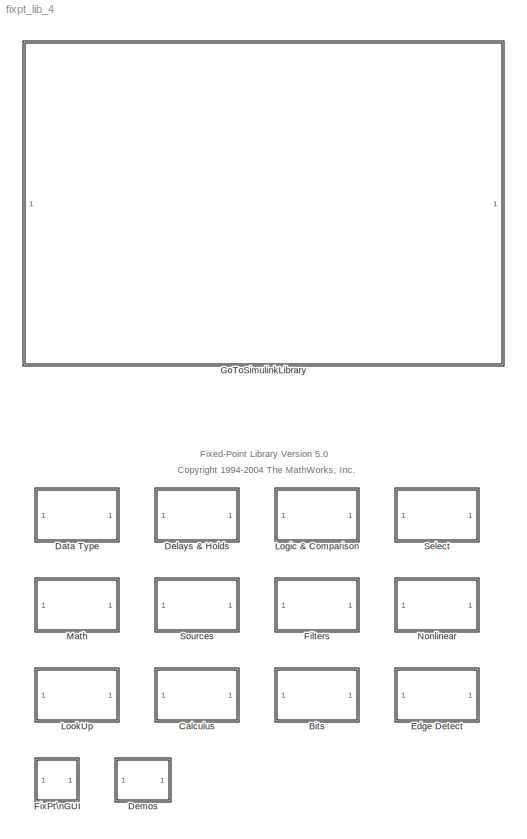
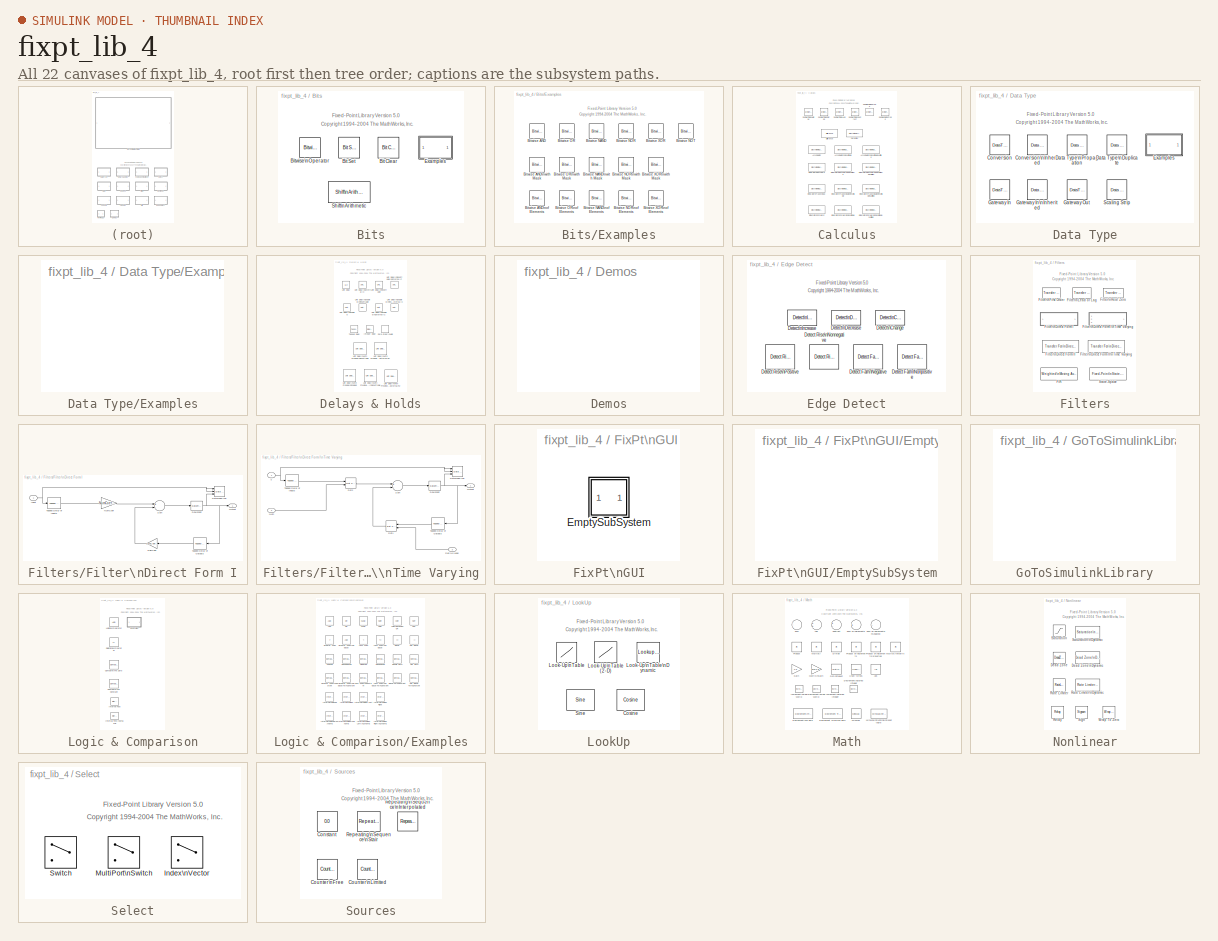
[diagram: thumbnail index - all 22 canvases of the model, root first then tree order]
MODEL fixpt_lib_4
KIND library
BLOCK [SubSystem] Bits
  MaskDisplay = disp('Bits')
  MaskIconFrame = on
  MaskIconOpaque = on
  MaskIconRotate = none
  MaskIconUnits = autoscale
  MinAlgLoopOccurrences = off
  Ports = []
  PropExecContextAcrossSSBoundary = on
  RTWSystemCode = Auto
  TreatAsAtomicUnit = off
BLOCK [Reference] Bits/Bit Clear  REF=simulink/Logic and Bit\nOperations/Bit Clear
  Ports = [1, 1]
  ShowPortLabels = on
  SourceBlock = simulink/Logic and Bit\nOperations/Bit Clear
  SourceType = Bit Clear
  iBit = 0
BLOCK [Reference] Bits/Bit Set  REF=simulink/Logic and Bit\nOperations/Bit Set
  Ports = [1, 1]
  ShowPortLabels = on
  SourceBlock = simulink/Logic and Bit\nOperations/Bit Set
  SourceType = Bit Set
  iBit = 0
BLOCK [Reference] Bits/Bitwise\nOperator  REF=simulink/Logic and Bit\nOperations/Bitwise\nOperator
  BitMask = bin2dec('11011001')
  BitMaskRealWorld = Stored Integer
  NumInputPorts = 1
  Ports = [1, 1]
  SourceBlock = simulink/Logic and Bit\nOperations/Bitwise\nOperator
  SourceType = Bitwise Operator
  UseBitMask = on
  logicop = AND
BLOCK [SubSystem] Bits/Examples
  MaskDisplay = disp('Bitwise\\nExamples')
  MaskIconFrame = on
  MaskIconOpaque = on
  MaskIconRotate = none
  MaskIconUnits = autoscale
  MinAlgLoopOccurrences = off
  Ports = []
  PropExecContextAcrossSSBoundary = on
  RTWSystemCode = Auto
  TreatAsAtomicUnit = off
BLOCK [Reference] Bits/Examples/Bitwise AND  REF=simulink/Logic and Bit\nOperations/Bitwise\nOperator
  BitMask = bin2dec('11011001')
  BitMaskRealWorld = Stored Integer
  NumInputPorts = 2
  Ports = [2, 1]
  SourceBlock = simulink/Logic and Bit\nOperations/Bitwise\nOperator
  SourceType = Bitwise Operator
  UseBitMask = off
  logicop = AND
BLOCK [Reference] Bits/Examples/Bitwise AND\nof Elements  REF=simulink/Logic and Bit\nOperations/Bitwise\nOperator
  BitMask = bin2dec('11011001')
  BitMaskRealWorld = Stored Integer
  NumInputPorts = 1
  Ports = [1, 1]
  SourceBlock = simulink/Logic and Bit\nOperations/Bitwise\nOperator
  SourceType = Bitwise Operator
  UseBitMask = off
  logicop = AND
BLOCK [Reference] Bits/Examples/Bitwise AND\nwith Mask  REF=simulink/Logic and Bit\nOperations/Bitwise\nOperator
  BitMask = bin2dec('11011001')
  BitMaskRealWorld = Stored Integer
  NumInputPorts = 1
  Ports = [1, 1]
  SourceBlock = simulink/Logic and Bit\nOperations/Bitwise\nOperator
  SourceType = Bitwise Operator
  UseBitMask = on
  logicop = AND
BLOCK [Reference] Bits/Examples/Bitwise NAND  REF=simulink/Logic and Bit\nOperations/Bitwise\nOperator
  BitMask = bin2dec('11011001')
  BitMaskRealWorld = Stored Integer
  NumInputPorts = 2
  Ports = [2, 1]
  SourceBlock = simulink/Logic and Bit\nOperations/Bitwise\nOperator
  SourceType = Bitwise Operator
  UseBitMask = off
  logicop = NAND
BLOCK [Reference] Bits/Examples/Bitwise NAND\nof Elements  REF=simulink/Logic and Bit\nOperations/Bitwise\nOperator
  BitMask = bin2dec('11011001')
  BitMaskRealWorld = Stored Integer
  NumInputPorts = 1
  Ports = [1, 1]
  SourceBlock = simulink/Logic and Bit\nOperations/Bitwise\nOperator
  SourceType = Bitwise Operator
  UseBitMask = off
  logicop = NAND
BLOCK [Reference] Bits/Examples/Bitwise NAND\nwith Mask  REF=simulink/Logic and Bit\nOperations/Bitwise\nOperator
  BitMask = bin2dec('11011001')
  BitMaskRealWorld = Stored Integer
  NumInputPorts = 1
  Ports = [1, 1]
  SourceBlock = simulink/Logic and Bit\nOperations/Bitwise\nOperator
  SourceType = Bitwise Operator
  UseBitMask = on
  logicop = NAND
BLOCK [Reference] Bits/Examples/Bitwise NOR  REF=simulink/Logic and Bit\nOperations/Bitwise\nOperator
  BitMask = bin2dec('11011001')
  BitMaskRealWorld = Stored Integer
  NumInputPorts = 2
  Ports = [2, 1]
  SourceBlock = simulink/Logic and Bit\nOperations/Bitwise\nOperator
  SourceType = Bitwise Operator
  UseBitMask = off
  logicop = NOR
BLOCK [Reference] Bits/Examples/Bitwise NOR\nof Elements  REF=simulink/Logic and Bit\nOperations/Bitwise\nOperator
  BitMask = bin2dec('11011001')
  BitMaskRealWorld = Stored Integer
  NumInputPorts = 1
  Ports = [1, 1]
  SourceBlock = simulink/Logic and Bit\nOperations/Bitwise\nOperator
  SourceType = Bitwise Operator
  UseBitMask = off
  logicop = NOR
BLOCK [Reference] Bits/Examples/Bitwise NOR\nwith Mask  REF=simulink/Logic and Bit\nOperations/Bitwise\nOperator
  BitMask = bin2dec('11011001')
  BitMaskRealWorld = Stored Integer
  NumInputPorts = 1
  Ports = [1, 1]
  SourceBlock = simulink/Logic and Bit\nOperations/Bitwise\nOperator
  SourceType = Bitwise Operator
  UseBitMask = on
  logicop = NOR
BLOCK [Reference] Bits/Examples/Bitwise NOT  REF=simulink/Logic and Bit\nOperations/Bitwise\nOperator
  BitMask = bin2dec('11011001')
  BitMaskRealWorld = Stored Integer
  NumInputPorts = 1
  Ports = [1, 1]
  SourceBlock = simulink/Logic and Bit\nOperations/Bitwise\nOperator
  SourceType = Bitwise Operator
  UseBitMask = off
  logicop = NOT
BLOCK [Reference] Bits/Examples/Bitwise OR  REF=simulink/Logic and Bit\nOperations/Bitwise\nOperator
  BitMask = bin2dec('11011001')
  BitMaskRealWorld = Stored Integer
  NumInputPorts = 2
  Ports = [2, 1]
  SourceBlock = simulink/Logic and Bit\nOperations/Bitwise\nOperator
  SourceType = Bitwise Operator
  UseBitMask = off
  logicop = OR
BLOCK [Reference] Bits/Examples/Bitwise OR\nof Elements  REF=simulink/Logic and Bit\nOperations/Bitwise\nOperator
  BitMask = bin2dec('11011001')
  BitMaskRealWorld = Stored Integer
  NumInputPorts = 1
  Ports = [1, 1]
  SourceBlock = simulink/Logic and Bit\nOperations/Bitwise\nOperator
  SourceType = Bitwise Operator
  UseBitMask = off
  logicop = OR
BLOCK [Reference] Bits/Examples/Bitwise OR\nwith Mask  REF=simulink/Logic and Bit\nOperations/Bitwise\nOperator
  BitMask = bin2dec('11011001')
  BitMaskRealWorld = Stored Integer
  NumInputPorts = 1
  Ports = [1, 1]
  SourceBlock = simulink/Logic and Bit\nOperations/Bitwise\nOperator
  SourceType = Bitwise Operator
  UseBitMask = on
  logicop = OR
BLOCK [Reference] Bits/Examples/Bitwise XOR  REF=simulink/Logic and Bit\nOperations/Bitwise\nOperator
  BitMask = bin2dec('11011001')
  BitMaskRealWorld = Stored Integer
  NumInputPorts = 2
  Ports = [2, 1]
  SourceBlock = simulink/Logic and Bit\nOperations/Bitwise\nOperator
  SourceType = Bitwise Operator
  UseBitMask = off
  logicop = XOR
BLOCK [Reference] Bits/Examples/Bitwise XOR\nof Elements  REF=simulink/Logic and Bit\nOperations/Bitwise\nOperator
  BitMask = bin2dec('11011001')
  BitMaskRealWorld = Stored Integer
  NumInputPorts = 1
  Ports = [1, 1]
  SourceBlock = simulink/Logic and Bit\nOperations/Bitwise\nOperator
  SourceType = Bitwise Operator
  UseBitMask = off
  logicop = XOR
BLOCK [Reference] Bits/Examples/Bitwise XOR\nwith Mask  REF=simulink/Logic and Bit\nOperations/Bitwise\nOperator
  BitMask = bin2dec('11011001')
  BitMaskRealWorld = Stored Integer
  NumInputPorts = 1
  Ports = [1, 1]
  SourceBlock = simulink/Logic and Bit\nOperations/Bitwise\nOperator
  SourceType = Bitwise Operator
  UseBitMask = on
  logicop = XOR
BLOCK [Reference] Bits/Shift\nArithmetic  REF=simulink/Logic and Bit\nOperations/Shift\nArithmetic
  Ports = [1, 1]
  ShowPortLabels = on
  SourceBlock = simulink/Logic and Bit\nOperations/Shift\nArithmetic
  SourceType = Shift Arithmetic
  nBinPtShiftRight = 0
  nBitShiftRight = 8
BLOCK [SubSystem] Calculus
  MaskDisplay = disp('Calculus')
  MaskIconFrame = on
  MaskIconOpaque = on
  MaskIconRotate = none
  MaskIconUnits = autoscale
  MinAlgLoopOccurrences = off
  Ports = []
  PropExecContextAcrossSSBoundary = on
  RTWSystemCode = Auto
  TreatAsAtomicUnit = off
BLOCK [DiscreteIntegrator] Calculus/Accumulator
  ExternalReset = none
  ICPrevOutput = DiscIntNeverNeededParam
  ICPrevScaledInput = DiscIntNeverNeededParam
  InitialConditionMode = State only (most efficient)
  InitialConditionSource = internal
  IntegratorMethod = Accumulation: Backward Euler
  Ports = [1, 1]
  SampleTime = -1
BLOCK [DiscreteIntegrator] Calculus/Accumulator\nResettable
  ExternalReset = level
  ICPrevOutput = DiscIntNeverNeededParam
  ICPrevScaledInput = DiscIntNeverNeededParam
  InitialConditionSource = internal
  IntegratorMethod = Accumulation: Backward Euler
  Ports = [2, 1]
  SampleTime = -1
BLOCK [DiscreteIntegrator] Calculus/Accumulator\nResettable\nLimited
  ExternalReset = level
  ICPrevOutput = DiscIntNeverNeededParam
  ICPrevScaledInput = DiscIntNeverNeededParam
  InitialConditionSource = internal
  IntegratorMethod = Accumulation: Backward Euler
  LimitOutput = on
  LowerSaturationLimit = -0.5
  Ports = [2, 1]
  SampleTime = -1
  UpperSaturationLimit = 0.5
BLOCK [Reference] Calculus/Derivative  REF=simulink/Discrete/Discrete Derivative
  DoSatur = off
  ICPrevScaledInput = 0.0
  LockScale = off
  OutDataType = sfix(16)
  OutScaling = 2^-10
  OutputDataTypeScalingMode = Inherit via internal rule
  Ports = [1, 1]
  RndMeth = Floor
  ShowPortLabels = on
  SourceBlock = simulink/Discrete/Discrete Derivative
  SourceType = Discrete Derivative
  gainval = 1.0
BLOCK [Reference] Calculus/Difference  REF=simulink/Discrete/Difference
  DoSatur = off
  ICPrevInput = 0.0
  LockScale = off
  OutDataType = sfix(16)
  OutScaling = 2^-10
  OutputDataTypeScalingMode = Inherit via internal rule
  Ports = [1, 1]
  RndMeth = Floor
  ShowPortLabels = on
  SourceBlock = simulink/Discrete/Difference
  SourceType = Difference
BLOCK [DiscreteIntegrator] Calculus/Integrator\nBackward
  ExternalReset = none
  ICPrevOutput = DiscIntNeverNeededParam
  ICPrevScaledInput = DiscIntNeverNeededParam
  InitialConditionMode = State only (most efficient)
  InitialConditionSource = internal
  IntegratorMethod = Integration: Backward Euler
  Ports = [1, 1]
  SampleTime = -1
BLOCK [DiscreteIntegrator] Calculus/Integrator\nBackward\nResettable
  ExternalReset = level
  ICPrevOutput = DiscIntNeverNeededParam
  ICPrevScaledInput = DiscIntNeverNeededParam
  InitialConditionSource = internal
  IntegratorMethod = Integration: Backward Euler
  Ports = [2, 1]
  SampleTime = -1
BLOCK [DiscreteIntegrator] Calculus/Integrator\nBackward\nResettable\nLimited
  ExternalReset = level
  ICPrevOutput = DiscIntNeverNeededParam
  ICPrevScaledInput = DiscIntNeverNeededParam
  InitialConditionSource = internal
  IntegratorMethod = Integration: Backward Euler
  LimitOutput = on
  LowerSaturationLimit = -0.5
  Ports = [2, 1]
  SampleTime = -1
  UpperSaturationLimit = 0.5
BLOCK [DiscreteIntegrator] Calculus/Integrator\nForward
  ExternalReset = none
  ICPrevOutput = DiscIntNeverNeededParam
  ICPrevScaledInput = DiscIntNeverNeededParam
  InitialConditionMode = State only (most efficient)
  InitialConditionSource = internal
  IntegratorMethod = Integration: Forward Euler
  Ports = [1, 1]
  SampleTime = -1
BLOCK [DiscreteIntegrator] Calculus/Integrator\nForward\nResettable
  ExternalReset = level
  ICPrevOutput = DiscIntNeverNeededParam
  ICPrevScaledInput = DiscIntNeverNeededParam
  InitialConditionMode = State only (most efficient)
  InitialConditionSource = internal
  IntegratorMethod = Integration: Forward Euler
  Ports = [2, 1]
  SampleTime = -1
BLOCK [DiscreteIntegrator] Calculus/Integrator\nForward\nResettable\nLimited
  ExternalReset = level
  ICPrevOutput = DiscIntNeverNeededParam
  ICPrevScaledInput = DiscIntNeverNeededParam
  InitialConditionMode = State only (most efficient)
  InitialConditionSource = internal
  IntegratorMethod = Integration: Forward Euler
  LimitOutput = on
  LowerSaturationLimit = -0.5
  Ports = [2, 1]
  SampleTime = -1
  UpperSaturationLimit = 0.5
BLOCK [DiscreteIntegrator] Calculus/Integrator\nTrapezoidal
  ExternalReset = none
  ICPrevOutput = DiscIntNeverNeededParam
  ICPrevScaledInput = DiscIntNeverNeededParam
  InitialConditionMode = State only (most efficient)
  InitialConditionSource = internal
  IntegratorMethod = Integration: Trapezoidal
  Ports = [1, 1]
  SampleTime = -1
BLOCK [DiscreteIntegrator] Calculus/Integrator\nTrapezoidal\nResettable
  ExternalReset = level
  ICPrevOutput = DiscIntNeverNeededParam
  ICPrevScaledInput = DiscIntNeverNeededParam
  InitialConditionSource = internal
  IntegratorMethod = Integration: Trapezoidal
  Ports = [2, 1]
  SampleTime = -1
BLOCK [DiscreteIntegrator] Calculus/Integrator\nTrapezoidal\nResettable\nLimited
  ExternalReset = level
  ICPrevOutput = DiscIntNeverNeededParam
  ICPrevScaledInput = DiscIntNeverNeededParam
  InitialConditionSource = internal
  IntegratorMethod = Integration: Trapezoidal
  LimitOutput = on
  LowerSaturationLimit = -0.5
  Ports = [2, 1]
  SampleTime = -1
  UpperSaturationLimit = 0.5
BLOCK [Reference] Calculus/Sample Rate\nProbe  REF=simulink/Math\nOperations/Weighted\nSample Time\nMath
  DoSatur = off
  OutputDataTypeScalingMode = Inherit via internal rule
  Ports = [1, 1]
  RndMeth = Floor
  SourceBlock = simulink/Math\nOperations/Weighted\nSample Time\nMath
  SourceType = Sample Time Math
  TsampMathImp = Online Calculations
  TsampMathOp = 1/Ts Only
  weightValue = 1
BLOCK [Reference] Calculus/Sample Time\nAdd  REF=simulink/Math\nOperations/Weighted\nSample Time\nMath
  DoSatur = off
  OutputDataTypeScalingMode = Inherit via internal rule
  Ports = [1, 1]
  RndMeth = Floor
  SourceBlock = simulink/Math\nOperations/Weighted\nSample Time\nMath
  SourceType = Sample Time Math
  TsampMathImp = Online Calculations
  TsampMathOp = +
  weightValue = 1.0
BLOCK [Reference] Calculus/Sample Time\nDivide  REF=simulink/Math\nOperations/Weighted\nSample Time\nMath
  DoSatur = off
  OutputDataTypeScalingMode = Inherit via internal rule
  Ports = [1, 1]
  RndMeth = Floor
  SourceBlock = simulink/Math\nOperations/Weighted\nSample Time\nMath
  SourceType = Sample Time Math
  TsampMathImp = Online Calculations
  TsampMathOp = /
  weightValue = 1.0
BLOCK [Reference] Calculus/Sample Time\nMultiply  REF=simulink/Math\nOperations/Weighted\nSample Time\nMath
  DoSatur = off
  OutputDataTypeScalingMode = Inherit via internal rule
  Ports = [1, 1]
  RndMeth = Floor
  SourceBlock = simulink/Math\nOperations/Weighted\nSample Time\nMath
  SourceType = Sample Time Math
  TsampMathImp = Online Calculations
  TsampMathOp = *
  weightValue = 1.0
BLOCK [Reference] Calculus/Sample Time\nProbe  REF=simulink/Math\nOperations/Weighted\nSample Time\nMath
  DoSatur = off
  OutputDataTypeScalingMode = Inherit via internal rule
  Ports = [1, 1]
  RndMeth = Floor
  SourceBlock = simulink/Math\nOperations/Weighted\nSample Time\nMath
  SourceType = Sample Time Math
  TsampMathImp = Online Calculations
  TsampMathOp = Ts Only
  weightValue = 1.0
BLOCK [Reference] Calculus/Sample Time\nSubtract  REF=simulink/Math\nOperations/Weighted\nSample Time\nMath
  DoSatur = off
  OutputDataTypeScalingMode = Inherit via internal rule
  Ports = [1, 1]
  RndMeth = Floor
  SourceBlock = simulink/Math\nOperations/Weighted\nSample Time\nMath
  SourceType = Sample Time Math
  TsampMathImp = Online Calculations
  TsampMathOp = -
  weightValue = 1.0
BLOCK [SubSystem] Data Type
  MaskDisplay = disp('Data Type\\nConversion &\\nPropagation')
  MaskIconFrame = on
  MaskIconOpaque = on
  MaskIconRotate = none
  MaskIconUnits = autoscale
  MinAlgLoopOccurrences = off
  Ports = []
  PropExecContextAcrossSSBoundary = on
  RTWSystemCode = Auto
  TreatAsAtomicUnit = off
BLOCK [DataTypeConversion] Data Type/Conversion
  OutDataTypeMode = Specify via dialog
  OutScaling = 2^-10
  RndMeth = Floor
  SaturateOnIntegerOverflow = off
BLOCK [Reference] Data Type/Conversion\nInherited  REF=simulink/Signal\nAttributes/Data Type\nConversion\nInherited
  ConvertRealWorld = Real World Value
  DoSatur = off
  Ports = [2, 1]
  RndMeth = Floor
  ShowPortLabels = on
  SourceBlock = simulink/Signal\nAttributes/Data Type\nConversion\nInherited
  SourceType = Conversion Inherited
BLOCK [Reference] Data Type/Data Type\nDuplicate  REF=simulink/Signal\nAttributes/Data Type\nDuplicate
  NumInputPorts = 2
  Ports = [2]
  SourceBlock = simulink/Signal\nAttributes/Data Type\nDuplicate
  SourceType = Data Type Duplicate
BLOCK [Reference] Data Type/Data Type\nPropagation  REF=simulink/Signal\nAttributes/Data Type\nPropagation
  BiasAdd = 0
  BiasBase = Bias1
  BiasMult = 1
  IfRefDouble = double
  IfRefSingle = single
  IsSigned = IsSigned1 or IsSigned2
  NumBitsAdd = 0
  NumBitsAllowFinal = 1:128
  NumBitsBase = max([NumBits1 NumBits2])
  NumBitsMult = 1
  Ports = [3]
  PropDataType = sfix(16)
  PropDataTypeMode = Inherit via propagation rule
  PropScaling = 2^-10
  PropScalingMode = Inherit via propagation rule
  SlopeAdd = 0
  SlopeBase = min([Slope1 Slope2])
  SlopeMult = 1
  SourceBlock = simulink/Signal\nAttributes/Data Type\nPropagation
  SourceType = Data Type Propagation
  ValuesUsedBestPrec = [5 -7]
BLOCK [SubSystem] Data Type/Examples
  MaskDisplay = disp('Data Type\\nPropagation\\nExamples')
  MaskIconFrame = on
  MaskIconOpaque = on
  MaskIconRotate = none
  MaskIconUnits = autoscale
  MinAlgLoopOccurrences = off
  OpenFcn = open_system('fixpt_dtprop')
  Ports = []
  PropExecContextAcrossSSBoundary = on
  RTWSystemCode = Auto
  TreatAsAtomicUnit = off
BLOCK [DataTypeConversion] Data Type/Gateway In
  OutDataTypeMode = Specify via dialog
  OutScaling = 2^-10
  RndMeth = Floor
  SaturateOnIntegerOverflow = off
BLOCK [Reference] Data Type/Gateway In\nInherited  REF=simulink/Signal\nAttributes/Data Type\nConversion\nInherited
  ConvertRealWorld = Real World Value
  DoSatur = off
  Ports = [2, 1]
  RndMeth = Floor
  ShowPortLabels = on
  SourceBlock = simulink/Signal\nAttributes/Data Type\nConversion\nInherited
  SourceType = Conversion Inherited
BLOCK [DataTypeConversion] Data Type/Gateway Out
  OutDataTypeMode = double
  RndMeth = Floor
  SaturateOnIntegerOverflow = off
BLOCK [Reference] Data Type/Scaling Strip  REF=simulink/Signal\nAttributes/Data Type\nScaling Strip
  Ports = [1, 1]
  ShowPortLabels = on
  SourceBlock = simulink/Signal\nAttributes/Data Type\nScaling Strip
  SourceType = Scaling Strip
BLOCK [SubSystem] Delays & Holds
  MaskDisplay = disp('Delays\\n& Holds')
  MaskIconFrame = on
  MaskIconOpaque = on
  MaskIconRotate = none
  MaskIconUnits = autoscale
  MinAlgLoopOccurrences = off
  Ports = []
  PropExecContextAcrossSSBoundary = on
  RTWSystemCode = Auto
  TreatAsAtomicUnit = off
BLOCK [Reference] Delays & Holds/Integer Delay  REF=simulink/Discrete/Integer Delay
  NumDelays = 4
  Ports = [1, 1]
  SourceBlock = simulink/Discrete/Integer Delay
  SourceType = Integer Delay
  samptime = -1
  vinit = 0.0
BLOCK [Reference] Delays & Holds/Tapped Delay  REF=simulink/Discrete/Tapped Delay
  DelayOrder = Oldest
  NumDelays = 4
  Ports = [1, 1]
  SourceBlock = simulink/Discrete/Tapped Delay
  SourceType = Tapped Delay Line
  includeCurrent = off
  samptime = -1
  vinit = 0.0
BLOCK [UnitDelay] Delays & Holds/Unit Delay
  SampleTime = -1
  X0 = 0.0
BLOCK [Reference] Delays & Holds/Unit Delay\nEnabled  REF=simulink/Additional Math\n& Discrete/Additional\nDiscrete/Unit Delay\nEnabled
  Ports = [2, 1]
  ShowPortLabels = on
  SourceBlock = simulink/Additional Math\n& Discrete/Additional\nDiscrete/Unit Delay\nEnabled
  SourceType = Unit Delay Enabled
  tsamp = -1
  vinit = 0.0
BLOCK [Reference] Delays & Holds/Unit Delay\nEnabled\nExternal IC  REF=simulink/Additional Math\n& Discrete/Additional\nDiscrete/Unit Delay\nEnabled\nExternal IC
  Ports = [3, 1]
  ShowPortLabels = on
  SourceBlock = simulink/Additional Math\n& Discrete/Additional\nDiscrete/Unit Delay\nEnabled\nExternal IC
  SourceType = Unit Delay Enabled External Initial Condition
  tsamp = -1
BLOCK [Reference] Delays & Holds/Unit Delay\nEnabled\nResettable  REF=simulink/Additional Math\n& Discrete/Additional\nDiscrete/Unit Delay\nEnabled\nResettable
  Ports = [3, 1]
  ShowPortLabels = on
  SourceBlock = simulink/Additional Math\n& Discrete/Additional\nDiscrete/Unit Delay\nEnabled\nResettable
  SourceType = Unit Delay Enabled Resettable
  tsamp = -1
  vinit = 0.0
BLOCK [Reference] Delays & Holds/Unit Delay\nEnabled\nResettable\nExternal IC  REF=simulink/Additional Math\n& Discrete/Additional\nDiscrete/Unit Delay\nEnabled\nResettable\nExternal IC
  Ports = [4, 1]
  ShowPortLabels = on
  SourceBlock = simulink/Additional Math\n& Discrete/Additional\nDiscrete/Unit Delay\nEnabled\nResettable\nExternal IC
  SourceType = Unit Delay Enabled Resettable External Initial Condition
  tsamp = -1
BLOCK [Reference] Delays & Holds/Unit Delay\nExternal IC  REF=simulink/Additional Math\n& Discrete/Additional\nDiscrete/Unit Delay\nExternal IC
  Ports = [2, 1]
  ShowPortLabels = on
  SourceBlock = simulink/Additional Math\n& Discrete/Additional\nDiscrete/Unit Delay\nExternal IC
  SourceType = Unit Delay External Initial Condition
  tsamp = -1
BLOCK [Reference] Delays & Holds/Unit Delay\nResettable  REF=simulink/Additional Math\n& Discrete/Additional\nDiscrete/Unit Delay\nResettable
  Ports = [2, 1]
  ShowPortLabels = on
  SourceBlock = simulink/Additional Math\n& Discrete/Additional\nDiscrete/Unit Delay\nResettable
  SourceType = Unit Delay Resettable
  tsamp = -1
  vinit = 0.0
BLOCK [Reference] Delays & Holds/Unit Delay\nResettable\nExternal IC  REF=simulink/Additional Math\n& Discrete/Additional\nDiscrete/Unit Delay\nResettable\nExternal IC
  Ports = [3, 1]
  ShowPortLabels = on
  SourceBlock = simulink/Additional Math\n& Discrete/Additional\nDiscrete/Unit Delay\nResettable\nExternal IC
  SourceType = Unit Delay Resettable External Initial Condition
  tsamp = -1
BLOCK [Reference] Delays & Holds/Unit Delay\nWith Preview\nEnabled  REF=simulink/Additional Math\n& Discrete/Additional\nDiscrete/Unit Delay\nWith Preview\nEnabled
  Ports = [2, 2]
  ShowPortLabels = on
  SourceBlock = simulink/Additional Math\n& Discrete/Additional\nDiscrete/Unit Delay\nWith Preview\nEnabled
  SourceType = Unit Delay With Preview Enabled
  tsamp = -1
  vinit = 0.0
BLOCK [Reference] Delays & Holds/Unit Delay\nWith Preview\nEnabled\nResettable  REF=simulink/Additional Math\n& Discrete/Additional\nDiscrete/Unit Delay\nWith Preview\nEnabled\nResettable
  Ports = [3, 2]
  ShowPortLabels = on
  SourceBlock = simulink/Additional Math\n& Discrete/Additional\nDiscrete/Unit Delay\nWith Preview\nEnabled\nResettable
  SourceType = Unit Delay With Preview Enabled Resettable
  tsamp = -1
  vinit = 0.0
BLOCK [Reference] Delays & Holds/Unit Delay\nWith Preview\nEnabled\nResettable\nExternal RV  REF=simulink/Additional Math\n& Discrete/Additional\nDiscrete/Unit Delay\nWith Preview\nEnabled\nResettable\nExternal RV
  Ports = [4, 2]
  ShowPortLabels = on
  SourceBlock = simulink/Additional Math\n& Discrete/Additional\nDiscrete/Unit Delay\nWith Preview\nEnabled\nResettable\nExternal RV
  SourceType = Unit Delay With Preview Enabled Resettable External RV
  tsamp = -1
  vinit = 0.0
BLOCK [Reference] Delays & Holds/Unit Delay\nWith Preview\nResettable  REF=simulink/Additional Math\n& Discrete/Additional\nDiscrete/Unit Delay\nWith Preview\nResettable
  Ports = [2, 2]
  ShowPortLabels = on
  SourceBlock = simulink/Additional Math\n& Discrete/Additional\nDiscrete/Unit Delay\nWith Preview\nResettable
  SourceType = Unit Delay With Preview Resettable
  tsamp = -1
  vinit = 0.0
BLOCK [Reference] Delays & Holds/Unit Delay\nWith Preview\nResettable\nExternal RV  REF=simulink/Additional Math\n& Discrete/Additional\nDiscrete/Unit Delay\nWith Preview\nResettable\nExternal RV
  Ports = [3, 2]
  ShowPortLabels = on
  SourceBlock = simulink/Additional Math\n& Discrete/Additional\nDiscrete/Unit Delay\nWith Preview\nResettable\nExternal RV
  SourceType = Unit Delay With Preview Resettable External RV
  tsamp = -1
  vinit = 0.0
BLOCK [ZeroOrderHold] Delays & Holds/Zero-Order\nHold
BLOCK [SubSystem] Demos
  MaskDisplay = disp('Demos')
  MaskHelp = web(fpbhelp)
  MaskIconFrame = on
  MaskIconOpaque = on
  MaskIconRotate = none
  MaskIconUnits = autoscale
  MinAlgLoopOccurrences = off
  OpenFcn = demo('blocksets','Fixed Point')
  Ports = []
  PropExecContextAcrossSSBoundary = on
  RTWSystemCode = Auto
  TreatAsAtomicUnit = off
BLOCK [SubSystem] Edge Detect
  MaskDisplay = disp('Edge\\nDetect')
  MaskIconFrame = on
  MaskIconOpaque = on
  MaskIconRotate = none
  MaskIconUnits = autoscale
  MinAlgLoopOccurrences = off
  Ports = []
  PropExecContextAcrossSSBoundary = on
  RTWSystemCode = Auto
  TreatAsAtomicUnit = off
BLOCK [Reference] Edge Detect/Detect Fall\nNegative  REF=simulink/Logic and Bit\nOperations/Detect Fall\nNegative
  Ports = [1, 1]
  ShowPortLabels = on
  SourceBlock = simulink/Logic and Bit\nOperations/Detect Fall\nNegative
  SourceType = Detect Fall Negative
  vinit = 0
BLOCK [Reference] Edge Detect/Detect Fall\nNonpositive  REF=simulink/Logic and Bit\nOperations/Detect Fall\nNonpositive
  Ports = [1, 1]
  ShowPortLabels = on
  SourceBlock = simulink/Logic and Bit\nOperations/Detect Fall\nNonpositive
  SourceType = Detect Fall Nonpositive
  vinit = 0
BLOCK [Reference] Edge Detect/Detect Rise\nNonnegative  REF=simulink/Logic and Bit\nOperations/Detect Rise\nNonnegative
  Ports = [1, 1]
  ShowPortLabels = on
  SourceBlock = simulink/Logic and Bit\nOperations/Detect Rise\nNonnegative
  SourceType = Detect Rise Nonnegative
  vinit = 0
BLOCK [Reference] Edge Detect/Detect Rise\nPositive  REF=simulink/Logic and Bit\nOperations/Detect Rise\nPositive
  Ports = [1, 1]
  ShowPortLabels = on
  SourceBlock = simulink/Logic and Bit\nOperations/Detect Rise\nPositive
  SourceType = Detect Rise Positive
  vinit = 0
BLOCK [Reference] Edge Detect/Detect\nChange  REF=simulink/Logic and Bit\nOperations/Detect\nChange
  Ports = [1, 1]
  ShowPortLabels = on
  SourceBlock = simulink/Logic and Bit\nOperations/Detect\nChange
  SourceType = Detect Change
  vinit = 0
BLOCK [Reference] Edge Detect/Detect\nDecrease  REF=simulink/Logic and Bit\nOperations/Detect\nDecrease
  Ports = [1, 1]
  ShowPortLabels = on
  SourceBlock = simulink/Logic and Bit\nOperations/Detect\nDecrease
  SourceType = Detect Decrease
  vinit = 0.0
BLOCK [Reference] Edge Detect/Detect\nIncrease  REF=simulink/Logic and Bit\nOperations/Detect\nIncrease
  Ports = [1, 1]
  ShowPortLabels = on
  SourceBlock = simulink/Logic and Bit\nOperations/Detect\nIncrease
  SourceType = Detect Increase
  vinit = 0.0
BLOCK [SubSystem] Filters
  MaskDisplay = disp('Filters')
  MaskIconFrame = on
  MaskIconOpaque = on
  MaskIconRotate = none
  MaskIconUnits = autoscale
  MinAlgLoopOccurrences = off
  Ports = []
  PropExecContextAcrossSSBoundary = on
  RTWSystemCode = Auto
  TreatAsAtomicUnit = off
BLOCK [Reference] Filters/FIR  REF=simulink/Discrete/Weighted\nMoving Average
  DoSatur = off
  GainDataType = sfix( 16 )
  GainDataTypeScalingMode = Inherit via internal rule
  GainScaling = 2^-10
  LockScale = off
  MatRadixGroup = Best Precision: Matrix-wise
  OutDataType = sfix(16)
  OutScaling = 2^-10
  OutputDataTypeScalingMode = Inherit via internal rule
  Ports = [1, 1]
  RndMeth = Floor
  SourceBlock = simulink/Discrete/Weighted\nMoving Average
  SourceType = Weighted Moving Average
  mgainval = [0.1:0.1:1 0.9:-0.1:0.1]
  samptime = -1
  vinit = 0.0
BLOCK [SubSystem] Filters/Filter\nDirect Form I
  MaskCallbackString = fixptdialog(gcbh)|fixptdialog(gcbh)||||
  MaskDescription = A Direct Form I realization of the specified transfer is used.  Only single input single output transfer functions are supported.  \n\nThe data types and scalings of the output, the coefficients, and any temporary variables are automatically selected.  The automatic choices will be acceptable in many situations.  In situations where the automatic choices give unacceptable results, manual layout of...<+504ch>
  MaskDisplay = dpoly(NumCoefVec,[1 DenCoefVec],'z-')
  MaskEnableString = on,on,on,on,on,on
  MaskIconFrame = on
  MaskIconOpaque = on
  MaskIconRotate = none
  MaskIconUnits = normalized
  MaskInitialization = blkH = gcbh;\nblkName = getfullname(blkH);\n\nvRndMeth = get_param(blkH,'RndMeth');\nvDoSatur = get_param(blkH,'DoSatur');\nDCGain = polyval(NumCoefVec,1)./polyval([1 DenCoefVec],1);\nmaxGain = max( 1, max(max(abs(DCGain))) );\nmaxGain = max( maxGain, abs(NumCoefVec(1)) );\nOutputSlopeMult = 2^ceil(log2(maxGain));\n\nset_param([blkName,'/NumCoef'],'RndMeth',vRndMeth, ...\n	'DoSatur',vDoSatur);\nse...<+234ch>
  MaskPromptString = Numerator coefficients:|Denominator coefficients excluding lead (which must be 1.0):|Initial condition for previous output:|Initial condition for previous input:|Round toward:|Saturate to max or min when overflows occur
  MaskSelfModifiable = on
  MaskStyleString = edit,edit,edit,edit,popup(Zero|Nearest|Ceiling|Floor),checkbox
  MaskTabNameString = ,,,,,
  MaskToolTipString = on,on,on,on,on,on
  MaskTunableValueString = on,on,on,on,on,on
  MaskType = Transfer Fcn Direct Form I
  MaskValueString = [0.2 0.3 0.2]|[-0.9    0.6]|0.0|0.0|Floor|off
  MaskVarAliasString = ,,,,,
  MaskVariables = NumCoefVec=@1;DenCoefVec=@2;ICPrevOutput=@3;ICPrevInput=@4;RndMeth=@5;DoSatur=@6;
  MaskVisibilityString = on,on,on,on,on,on
  MinAlgLoopOccurrences = off
  Ports = [1, 1]
  PropExecContextAcrossSSBoundary = on
  RTWSystemCode = Auto
  TreatAsAtomicUnit = off
BLOCK [Reference] Filters/Filter\nDirect Form I/DataTypeProp  REF=simulink/Signal\nAttributes/Data Type\nPropagation
  BiasAdd = 0
  BiasBase = Bias1
  BiasMult = 0
  IfRefDouble = double
  IfRefSingle = single
  IsSigned = IsSigned1 or IsSigned2
  NumBitsAdd = 0
  NumBitsAllowFinal = 1:128
  NumBitsBase = max([NumBits1 NumBits2])
  NumBitsMult = 1
  Ports = [3]
  PropDataType = sfix(16)
  PropDataTypeMode = Inherit via propagation rule
  PropScaling = 2^-10
  PropScalingMode = Inherit via propagation rule
  SlopeAdd = 0
  SlopeBase = min([Slope1 Slope2])
  SlopeMult = OutputSlopeMult
  SourceBlock = simulink/Signal\nAttributes/Data Type\nPropagation
  SourceType = Data Type Propagation
  ValuesUsedBestPrec = [5 -7]
BLOCK [Gain] Filters/Filter\nDirect Form I/DenCoef
  AttributesFormatString = \nData Type and Scaling Inherited\nwith goal of NO Quantization Noise\nPossible Overflow or Saturation
  Gain = DenCoefVec
  Multiplication = Matrix(K*u) (u vector)
  OutDataTypeMode = Inherit via internal rule
  OutScaling = 2^-10
  ParameterDataType = float('double')
  ParameterDataTypeMode = Inherit via internal rule
  ParameterScaling = 1
  ParameterScalingMode = Use specified scaling
  SaturateOnIntegerOverflow = off
BLOCK [DataTypeConversion] Filters/Filter\nDirect Form I/Downcast
  AttributesFormatString = %<Description>
  Description = \nReduce from CPU Size\n to Global RAM Size
  LockScale = on
  OutDataType = float('double')
  OutScaling = 1
  RndMeth = Floor
  SaturateOnIntegerOverflow = off
BLOCK [Inport] Filters/Filter\nDirect Form I/Input
  IconDisplay = Port number
  LatchInput = off
BLOCK [Gain] Filters/Filter\nDirect Form I/NumCoef
  AttributesFormatString = \nData Type and Scaling Inherited\nwith goal of NO Quantization Noise\nPossible Overflow or Saturation
  Gain = NumCoefVec
  Multiplication = Matrix(K*u) (u vector)
  OutDataTypeMode = Inherit via internal rule
  OutScaling = 2^-10
  ParameterDataType = float('double')
  ParameterDataTypeMode = Inherit via internal rule
  ParameterScaling = 1
  ParameterScalingMode = Use specified scaling
  SaturateOnIntegerOverflow = off
BLOCK [Outport] Filters/Filter\nDirect Form I/Output
  BusOutputAsStruct = off
  IconDisplay = Port number
BLOCK [Sum] Filters/Filter\nDirect Form I/Sum
  AttributesFormatString = \nData Type and Scaling Inherited\nwith goal of NO Quantization Noise\nPossible Overflow or Saturation
  InputSameDT = off
  Inputs = +-
  LockScale = on
  OutDataType = sfix(32)
  OutDataTypeMode = Inherit via internal rule
  OutScaling = 2^(-26)
  Ports = [2, 1]
  SaturateOnIntegerOverflow = off
  Tag = S16 2^-10
BLOCK [Reference] Filters/Filter\nDirect Form I/Tapped Delay of Inputs  REF=simulink/Discrete/Tapped Delay
  AttributesFormatString = \nNumber of Taps\nInherited via Back Propagation
  DelayOrder = Newest
  NumDelays = -1
  Ports = [1, 1]
  SourceBlock = simulink/Discrete/Tapped Delay
  SourceType = Tapped Delay Line
  includeCurrent = on
  samptime = -1
  vinit = ICPrevInput
BLOCK [Reference] Filters/Filter\nDirect Form I/Tapped Delay of Outputs  REF=simulink/Discrete/Tapped Delay
  AttributesFormatString = \nNumber of Taps\nInherited via Back Propagation
  DelayOrder = Newest
  NumDelays = -1
  Ports = [1, 1]
  SourceBlock = simulink/Discrete/Tapped Delay
  SourceType = Tapped Delay Line
  includeCurrent = off
  samptime = -1
  vinit = ICPrevOutput
BLOCK [Reference] Filters/Filter\nDirect Form II  REF=simulink/Additional Math\n& Discrete/Additional\nDiscrete/Transfer Fcn\nDirect Form II
  DenCoefVec = [-0.9    0.6]
  DoSatur = off
  NumCoefVec = [0.2 0.3 0.2]
  Ports = [1, 1]
  RndMeth = Floor
  ShowPortLabels = on
  SourceBlock = simulink/Additional Math\n& Discrete/Additional\nDiscrete/Transfer Fcn\nDirect Form II
  SourceType = Transfer Fcn Direct Form II
  vinit = 0.0
BLOCK [Reference] Filters/Filter\nDirect Form II\nTime Varying  REF=simulink/Additional Math\n& Discrete/Additional\nDiscrete/Transfer Fcn\nDirect Form II\nTime Varying
  DoSatur = off
  Ports = [3, 1]
  RndMeth = Floor
  ShowPortLabels = on
  SourceBlock = simulink/Additional Math\n& Discrete/Additional\nDiscrete/Transfer Fcn\nDirect Form II\nTime Varying
  SourceType = Transfer Fcn Direct Form II Time Varying
  vinit = 0.0
BLOCK [SubSystem] Filters/Filter\nDirect Form I\nTime Varying
  MaskCallbackString = |||
  MaskDescription = A Direct Form I realization of the specified transfer function is used.  Only single input single output transfer functions are supported.  \n\nThe data types and scalings of the output, the coefficients, and any temporary variables are automatically selected.  The automatic choices will be acceptable in many situations.  In situations where the automatic choices give unacceptable results, manual ...<+513ch>
  MaskDisplay = fprintf('Direct\\nForm I')
  MaskEnableString = on,on,on,on
  MaskIconFrame = on
  MaskIconOpaque = off
  MaskIconRotate = none
  MaskIconUnits = normalized
  MaskInitialization = blkH = gcbh;\nblkName = getfullname(blkH);\n\nvRndMeth = get_param(blkH,'RndMeth');\nvDoSatur = get_param(blkH,'DoSatur');\nset_param([blkName,'/Dot1'],'RndMeth',vRndMeth, ...\n	'DoSatur',vDoSatur);\nset_param([blkName,'/Dot2'],'RndMeth',vRndMeth, ...\n	'DoSatur',vDoSatur);\nset_param([blkName,'/Downcast'],'RndMeth',vRndMeth, ...\n	'DoSatur',vDoSatur);\nset_param([blkName,'/Sum'],'RndMeth',vRndMet...<+31ch>
  MaskPromptString = Initial condition for previous output:|Initial condition for previous input:|Round toward:|Saturate to max or min when overflows occur
  MaskSelfModifiable = on
  MaskStyleString = edit,edit,popup(Zero|Nearest|Ceiling|Floor),checkbox
  MaskTabNameString = ,,,
  MaskToolTipString = on,on,on,on
  MaskTunableValueString = on,on,on,on
  MaskType = Transfer Fcn Direct Form I Time Varying
  MaskValueString = 0.0|0.0|Floor|off
  MaskVarAliasString = ,,,
  MaskVariables = ICPrevOutput=@1;ICPrevInput=@2;RndMeth=@3;DoSatur=@4;
  MaskVisibilityString = on,on,on,on
  MinAlgLoopOccurrences = off
  Ports = [3, 1]
  PropExecContextAcrossSSBoundary = on
  RTWSystemCode = Auto
  TreatAsAtomicUnit = off
BLOCK [Reference] Filters/Filter\nDirect Form I\nTime Varying/DataTypeProp  REF=simulink/Signal\nAttributes/Data Type\nPropagation
  BiasAdd = 0
  BiasBase = Bias1
  BiasMult = 1
  IfRefDouble = double
  IfRefSingle = single
  IsSigned = IsSigned1
  NumBitsAdd = 0
  NumBitsAllowFinal = 1:128
  NumBitsBase = NumBits1
  NumBitsMult = 1
  Ports = [3]
  PropDataType = sfix(16)
  PropDataTypeMode = Inherit via propagation rule
  PropScaling = 2^-10
  PropScalingMode = Inherit via propagation rule
  SlopeAdd = 0
  SlopeBase = Slope1
  SlopeMult = 1
  SourceBlock = simulink/Signal\nAttributes/Data Type\nPropagation
  SourceType = Data Type Propagation
  ValuesUsedBestPrec = [5 -7]
BLOCK [Inport] Filters/Filter\nDirect Form I\nTime Varying/Den No Lead
  IconDisplay = Port number
  LatchInput = off
  Port = 3
BLOCK [Reference] Filters/Filter\nDirect Form I\nTime Varying/Dot1  REF=simulink/Math\nOperations/Dot Product
  AttributesFormatString = \nData Type and Scaling Inherited\nwith goal of NO Quantization Noise\nPossible Overflow or Saturation
  DoSatur = off
  InputSameDT = off
  LockScale = off
  OutDataType = sfix(16)
  OutScaling = 2^-10
  OutputDataTypeScalingMode = Inherit via internal rule
  Ports = [2, 1]
  RndMeth = Floor
  SourceBlock = simulink/Math\nOperations/Dot Product
  SourceType = Dot Product
BLOCK [Reference] Filters/Filter\nDirect Form I\nTime Varying/Dot2  REF=simulink/Math\nOperations/Dot Product
  AttributesFormatString = \nData Type and Scaling Inherited\nwith goal of NO Quantization Noise\nPossible Overflow or Saturation
  DoSatur = off
  InputSameDT = off
  LockScale = off
  OutDataType = sfix(16)
  OutScaling = 2^-10
  OutputDataTypeScalingMode = Inherit via internal rule
  Ports = [2, 1]
  RndMeth = Floor
  SourceBlock = simulink/Math\nOperations/Dot Product
  SourceType = Dot Product
BLOCK [DataTypeConversion] Filters/Filter\nDirect Form I\nTime Varying/Downcast
  AttributesFormatString = %<Description>
  Description = \nReduce from CPU Size\n to Global RAM Size
  LockScale = on
  OutDataType = float('double')
  OutScaling = 1
  RndMeth = Floor
  SaturateOnIntegerOverflow = off
BLOCK [Inport] Filters/Filter\nDirect Form I\nTime Varying/Num
  IconDisplay = Port number
  LatchInput = off
  Port = 2
BLOCK [Outport] Filters/Filter\nDirect Form I\nTime Varying/Output
  BusOutputAsStruct = off
  IconDisplay = Port number
BLOCK [Sum] Filters/Filter\nDirect Form I\nTime Varying/Sum
  AttributesFormatString = \nData Type and Scaling Inherited\nwith goal of NO Quantization Noise\nPossible Overflow or Saturation
  InputSameDT = off
  Inputs = +-
  LockScale = on
  OutDataType = sfix(32)
  OutDataTypeMode = Inherit via internal rule
  OutScaling = 2^(-26)
  Ports = [2, 1]
  SaturateOnIntegerOverflow = off
  Tag = S16 2^-10
BLOCK [Reference] Filters/Filter\nDirect Form I\nTime Varying/Tapped Delay of Inputs  REF=simulink/Discrete/Tapped Delay
  AttributesFormatString = \nNumber of Taps\nInherited via Back Propagation
  DelayOrder = Newest
  NumDelays = -1
  Ports = [1, 1]
  SourceBlock = simulink/Discrete/Tapped Delay
  SourceType = Tapped Delay Line
  includeCurrent = on
  samptime = -1
  vinit = ICPrevInput
BLOCK [Reference] Filters/Filter\nDirect Form I\nTime Varying/Tapped Delay of Outputs  REF=simulink/Discrete/Tapped Delay
  AttributesFormatString = \nNumber of Taps\nInherited via Back Propagation
  DelayOrder = Newest
  NumDelays = -1
  Ports = [1, 1]
  SourceBlock = simulink/Discrete/Tapped Delay
  SourceType = Tapped Delay Line
  includeCurrent = off
  samptime = -1
  vinit = ICPrevOutput
BLOCK [Inport] Filters/Filter\nDirect Form I\nTime Varying/u
  IconDisplay = Port number
  LatchInput = off
BLOCK [Reference] Filters/Filter\nFirst Order  REF=simulink/Discrete/Transfer Fcn\nFirst Order
  DoSatur = off
  ICPrevOutput = 0.0
  PoleZ = 0.95
  Ports = [1, 1]
  RndMeth = Floor
  ShowPortLabels = on
  SourceBlock = simulink/Discrete/Transfer Fcn\nFirst Order
  SourceType = First Order Transfer Fcn
BLOCK [Reference] Filters/Filter\nLead or Lag  REF=simulink/Discrete/Transfer Fcn\nLead or Lag
  DoSatur = off
  ICPrevInput = 0.0
  ICPrevOutput = 0.0
  PoleZ = 0.95
  Ports = [1, 1]
  RndMeth = Floor
  ShowPortLabels = on
  SourceBlock = simulink/Discrete/Transfer Fcn\nLead or Lag
  SourceType = Lead or Lag Compensator
  ZeroZ = 0.75
BLOCK [Reference] Filters/Filter\nReal Zero  REF=simulink/Discrete/Transfer Fcn\nReal Zero
  DoSatur = off
  ICPrevInput = 0.0
  Ports = [1, 1]
  RndMeth = Floor
  ShowPortLabels = on
  SourceBlock = simulink/Discrete/Transfer Fcn\nReal Zero
  SourceType = Transfer Fcn Real Zero
  ZeroZ = 0.75
BLOCK [Reference] Filters/State-Space  REF=simulink/Additional Math\n& Discrete/Additional\nDiscrete/Fixed-Point\nState-Space
  A = [2.6020 -2.2793 0.6708; 1 0 0; 0 1 0]
  B = [ 1; 0; 0]
  C = [0.0184    0.0024    0.0055]
  D = [0.0033]
  DoSatur = off
  InternalDataType = float('double')
  LockScale = off
  OutputEqScaling = 2^0
  Ports = [1, 1]
  RndMeth = Floor
  ShowPortLabels = on
  SourceBlock = simulink/Additional Math\n& Discrete/Additional\nDiscrete/Fixed-Point\nState-Space
  SourceType = Fixed-Point State-Space
  StateEqScaling = 2^0
  X0 = 0.0
BLOCK [SubSystem] FixPt\nGUI
  MaskDescription = Fixed point GUI block.
  MaskDisplay = disp('FixPt\\nGUI')
  MaskHelp = web(fpbhelp('fixptgui'));
  MaskIconFrame = on
  MaskIconOpaque = on
  MaskIconRotate = none
  MaskIconUnits = autoscale
  MaskType = Fixed-Point GUI
  MinAlgLoopOccurrences = off
  OpenFcn = fxptdlg(bdroot)
  Ports = []
  PropExecContextAcrossSSBoundary = on
  RTWSystemCode = Auto
  TreatAsAtomicUnit = off
BLOCK [SubSystem] FixPt\nGUI/EmptySubSystem
  MinAlgLoopOccurrences = off
  Ports = []
  PropExecContextAcrossSSBoundary = on
  RTWSystemCode = Auto
  TreatAsAtomicUnit = off
BLOCK [SubSystem] GoToSimulinkLibrary
  MaskDisplay = disp(dispstr)
  MaskIconFrame = on
  MaskIconOpaque = on
  MaskIconRotate = none
  MaskIconUnits = normalized
  MaskInitialization = dispstr = [...\n'This is an obsolete library. All blocks previously from\\n',...\n'Fixed-Point Blockset are automatically mapped to\\n',...\n'unified blocks in the main Simulink library.\\n\\n', ...\n'DOUBLE CLICK HERE to open the main Simulink library.\\n\\n',...\n'Unified blocks support both floating-point and fixed-point\\ndata types.  ',...\n'When used with floating-point or built-in\\n',...\n...<+351ch>
  MaskType = GoToSimulinkLibrary
  MinAlgLoopOccurrences = off
  OpenFcn = fixpt;
  Ports = []
  PropExecContextAcrossSSBoundary = on
  RTWSystemCode = Auto
  TreatAsAtomicUnit = off
BLOCK [SubSystem] Logic & Comparison
  MaskDisplay = disp('Logic &\\nComparison')
  MaskIconFrame = on
  MaskIconOpaque = on
  MaskIconRotate = none
  MaskIconUnits = autoscale
  MinAlgLoopOccurrences = off
  Ports = []
  PropExecContextAcrossSSBoundary = on
  RTWSystemCode = Auto
  TreatAsAtomicUnit = off
BLOCK [Reference] Logic & Comparison/Compare\nTo Constant  REF=simulink/Logic and Bit\nOperations/Compare\nTo Constant
  LogicOutDataTypeMode = uint8
  Ports = [1, 1]
  ShowPortLabels = on
  SourceBlock = simulink/Logic and Bit\nOperations/Compare\nTo Constant
  SourceType = Compare To Constant
  const = 3.0
  relop = <=
BLOCK [Reference] Logic & Comparison/Compare\nTo Zero  REF=simulink/Logic and Bit\nOperations/Compare\nTo Zero
  LogicOutDataTypeMode = uint8
  Ports = [1, 1]
  ShowPortLabels = on
  SourceBlock = simulink/Logic and Bit\nOperations/Compare\nTo Zero
  SourceType = Compare To Zero
  relop = <=
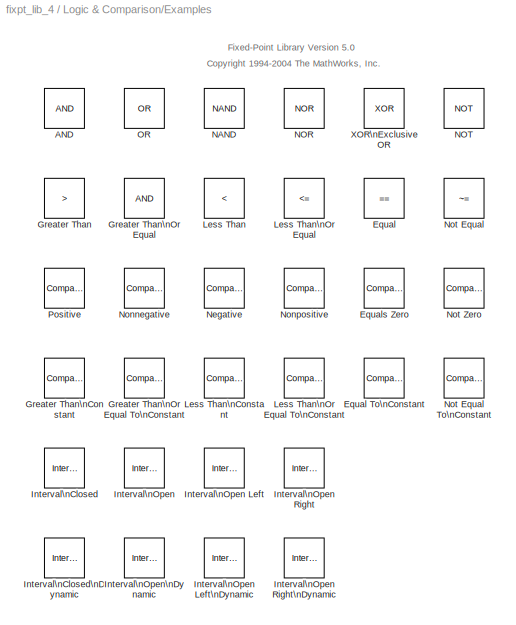
BLOCK [SubSystem] Logic & Comparison/Examples
  MaskDisplay = disp('Logic &\\nComparison\\nExamples')
  MaskIconFrame = on
  MaskIconOpaque = on
  MaskIconRotate = none
  MaskIconUnits = autoscale
  MinAlgLoopOccurrences = off
  Ports = []
  PropExecContextAcrossSSBoundary = on
  RTWSystemCode = Auto
  TreatAsAtomicUnit = off
BLOCK [Logic] Logic & Comparison/Examples/AND
  AllPortsSameDT = off
  OutDataTypeMode = Specify via dialog
  Ports = [2, 1]
BLOCK [RelationalOperator] Logic & Comparison/Examples/Equal
  InputSameDT = off
  LogicOutDataTypeMode = Specify via dialog
  Operator = ==
  ZeroCross = off
BLOCK [Reference] Logic & Comparison/Examples/Equal To\nConstant  REF=simulink/Logic and Bit\nOperations/Compare\nTo Constant
  LogicOutDataTypeMode = uint8
  Ports = [1, 1]
  ShowPortLabels = on
  SourceBlock = simulink/Logic and Bit\nOperations/Compare\nTo Constant
  SourceType = Compare To Constant
  const = 3.0
  relop = <=
BLOCK [Reference] Logic & Comparison/Examples/Equals Zero  REF=simulink/Logic and Bit\nOperations/Compare\nTo Zero
  LogicOutDataTypeMode = uint8
  Ports = [1, 1]
  ShowPortLabels = on
  SourceBlock = simulink/Logic and Bit\nOperations/Compare\nTo Zero
  SourceType = Compare To Zero
  relop = ==
BLOCK [RelationalOperator] Logic & Comparison/Examples/Greater Than
  InputSameDT = off
  LogicOutDataTypeMode = Specify via dialog
  Operator = >
  ZeroCross = off
BLOCK [Reference] Logic & Comparison/Examples/Greater Than\nConstant  REF=simulink/Logic and Bit\nOperations/Compare\nTo Constant
  LogicOutDataTypeMode = uint8
  Ports = [1, 1]
  ShowPortLabels = on
  SourceBlock = simulink/Logic and Bit\nOperations/Compare\nTo Constant
  SourceType = Compare To Constant
  const = 3.0
  relop = >
BLOCK [RelationalOperator] Logic & Comparison/Examples/Greater Than\nOr Equal
  InputSameDT = off
  LogicOutDataTypeMode = Specify via dialog
  ZeroCross = off
BLOCK [Reference] Logic & Comparison/Examples/Greater Than\nOr Equal To\nConstant  REF=simulink/Logic and Bit\nOperations/Compare\nTo Constant
  LogicOutDataTypeMode = uint8
  Ports = [1, 1]
  ShowPortLabels = on
  SourceBlock = simulink/Logic and Bit\nOperations/Compare\nTo Constant
  SourceType = Compare To Constant
  const = 3.0
  relop = >=
BLOCK [Reference] Logic & Comparison/Examples/Interval\nClosed  REF=simulink/Logic and Bit\nOperations/Interval Test
  IntervalClosedLeft = on
  IntervalClosedRight = on
  LogicOutDataTypeMode = boolean
  Ports = [1, 1]
  ShowPortLabels = on
  SourceBlock = simulink/Logic and Bit\nOperations/Interval Test
  SourceType = Interval Test
  lowlimit = -0.5
  uplimit = 0.5
BLOCK [Reference] Logic & Comparison/Examples/Interval\nClosed\nDynamic  REF=simulink/Logic and Bit\nOperations/Interval Test\nDynamic
  IntervalClosedLeft = on
  IntervalClosedRight = on
  LogicOutDataTypeMode = boolean
  Ports = [3, 1]
  ShowPortLabels = on
  SourceBlock = simulink/Logic and Bit\nOperations/Interval Test\nDynamic
  SourceType = Interval Test Dynamic
BLOCK [Reference] Logic & Comparison/Examples/Interval\nOpen  REF=simulink/Logic and Bit\nOperations/Interval Test
  IntervalClosedLeft = off
  IntervalClosedRight = off
  LogicOutDataTypeMode = boolean
  Ports = [1, 1]
  ShowPortLabels = on
  SourceBlock = simulink/Logic and Bit\nOperations/Interval Test
  SourceType = Interval Test
  lowlimit = -0.5
  uplimit = 0.5
BLOCK [Reference] Logic & Comparison/Examples/Interval\nOpen Left  REF=simulink/Logic and Bit\nOperations/Interval Test
  IntervalClosedLeft = off
  IntervalClosedRight = on
  LogicOutDataTypeMode = boolean
  Ports = [1, 1]
  ShowPortLabels = on
  SourceBlock = simulink/Logic and Bit\nOperations/Interval Test
  SourceType = Interval Test
  lowlimit = -0.5
  uplimit = 0.5
BLOCK [Reference] Logic & Comparison/Examples/Interval\nOpen Left\nDynamic  REF=simulink/Logic and Bit\nOperations/Interval Test\nDynamic
  IntervalClosedLeft = off
  IntervalClosedRight = on
  LogicOutDataTypeMode = boolean
  Ports = [3, 1]
  ShowPortLabels = on
  SourceBlock = simulink/Logic and Bit\nOperations/Interval Test\nDynamic
  SourceType = Interval Test Dynamic
BLOCK [Reference] Logic & Comparison/Examples/Interval\nOpen Right  REF=simulink/Logic and Bit\nOperations/Interval Test
  IntervalClosedLeft = on
  IntervalClosedRight = off
  LogicOutDataTypeMode = boolean
  Ports = [1, 1]
  ShowPortLabels = on
  SourceBlock = simulink/Logic and Bit\nOperations/Interval Test
  SourceType = Interval Test
  lowlimit = -0.5
  uplimit = 0.5
BLOCK [Reference] Logic & Comparison/Examples/Interval\nOpen Right\nDynamic  REF=simulink/Logic and Bit\nOperations/Interval Test\nDynamic
  IntervalClosedLeft = on
  IntervalClosedRight = off
  LogicOutDataTypeMode = boolean
  Ports = [3, 1]
  ShowPortLabels = on
  SourceBlock = simulink/Logic and Bit\nOperations/Interval Test\nDynamic
  SourceType = Interval Test Dynamic
BLOCK [Reference] Logic & Comparison/Examples/Interval\nOpen\nDynamic  REF=simulink/Logic and Bit\nOperations/Interval Test\nDynamic
  IntervalClosedLeft = off
  IntervalClosedRight = off
  LogicOutDataTypeMode = boolean
  Ports = [3, 1]
  ShowPortLabels = on
  SourceBlock = simulink/Logic and Bit\nOperations/Interval Test\nDynamic
  SourceType = Interval Test Dynamic
BLOCK [RelationalOperator] Logic & Comparison/Examples/Less Than
  InputSameDT = off
  LogicOutDataTypeMode = Specify via dialog
  Operator = <
  ZeroCross = off
BLOCK [Reference] Logic & Comparison/Examples/Less Than\nConstant  REF=simulink/Logic and Bit\nOperations/Compare\nTo Constant
  LogicOutDataTypeMode = uint8
  Ports = [1, 1]
  ShowPortLabels = on
  SourceBlock = simulink/Logic and Bit\nOperations/Compare\nTo Constant
  SourceType = Compare To Constant
  const = 3.0
  relop = <
BLOCK [RelationalOperator] Logic & Comparison/Examples/Less Than\nOr Equal
  InputSameDT = off
  LogicOutDataTypeMode = Specify via dialog
  Operator = <=
  ZeroCross = off
BLOCK [Reference] Logic & Comparison/Examples/Less Than\nOr Equal To\nConstant  REF=simulink/Logic and Bit\nOperations/Compare\nTo Constant
  LogicOutDataTypeMode = uint8
  Ports = [1, 1]
  ShowPortLabels = on
  SourceBlock = simulink/Logic and Bit\nOperations/Compare\nTo Constant
  SourceType = Compare To Constant
  const = 3.0
  relop = <=
BLOCK [Logic] Logic & Comparison/Examples/NAND
  AllPortsSameDT = off
  Operator = NAND
  OutDataTypeMode = Specify via dialog
  Ports = [2, 1]
BLOCK [Logic] Logic & Comparison/Examples/NOR
  AllPortsSameDT = off
  Operator = NOR
  OutDataTypeMode = Specify via dialog
  Ports = [2, 1]
BLOCK [Logic] Logic & Comparison/Examples/NOT
  AllPortsSameDT = off
  Inputs = 1
  Operator = NOT
  OutDataTypeMode = Specify via dialog
  Ports = [1, 1]
BLOCK [Reference] Logic & Comparison/Examples/Negative  REF=simulink/Logic and Bit\nOperations/Compare\nTo Zero
  LogicOutDataTypeMode = uint8
  Ports = [1, 1]
  ShowPortLabels = on
  SourceBlock = simulink/Logic and Bit\nOperations/Compare\nTo Zero
  SourceType = Compare To Zero
  relop = <
BLOCK [Reference] Logic & Comparison/Examples/Nonnegative  REF=simulink/Logic and Bit\nOperations/Compare\nTo Zero
  LogicOutDataTypeMode = uint8
  Ports = [1, 1]
  ShowPortLabels = on
  SourceBlock = simulink/Logic and Bit\nOperations/Compare\nTo Zero
  SourceType = Compare To Zero
  relop = >=
BLOCK [Reference] Logic & Comparison/Examples/Nonpositive  REF=simulink/Logic and Bit\nOperations/Compare\nTo Zero
  LogicOutDataTypeMode = uint8
  Ports = [1, 1]
  ShowPortLabels = on
  SourceBlock = simulink/Logic and Bit\nOperations/Compare\nTo Zero
  SourceType = Compare To Zero
  relop = <=
BLOCK [RelationalOperator] Logic & Comparison/Examples/Not Equal
  InputSameDT = off
  LogicOutDataTypeMode = Specify via dialog
  Operator = ~=
  ZeroCross = off
BLOCK [Reference] Logic & Comparison/Examples/Not Equal To\nConstant  REF=simulink/Logic and Bit\nOperations/Compare\nTo Constant
  LogicOutDataTypeMode = uint8
  Ports = [1, 1]
  ShowPortLabels = on
  SourceBlock = simulink/Logic and Bit\nOperations/Compare\nTo Constant
  SourceType = Compare To Constant
  const = 3.0
  relop = <=
BLOCK [Reference] Logic & Comparison/Examples/Not Zero  REF=simulink/Logic and Bit\nOperations/Compare\nTo Zero
  LogicOutDataTypeMode = uint8
  Ports = [1, 1]
  ShowPortLabels = on
  SourceBlock = simulink/Logic and Bit\nOperations/Compare\nTo Zero
  SourceType = Compare To Zero
  relop = ~=
BLOCK [Logic] Logic & Comparison/Examples/OR
  AllPortsSameDT = off
  Operator = OR
  OutDataTypeMode = Specify via dialog
  Ports = [2, 1]
BLOCK [Reference] Logic & Comparison/Examples/Positive  REF=simulink/Logic and Bit\nOperations/Compare\nTo Zero
  LogicOutDataTypeMode = uint8
  Ports = [1, 1]
  ShowPortLabels = on
  SourceBlock = simulink/Logic and Bit\nOperations/Compare\nTo Zero
  SourceType = Compare To Zero
  relop = >
BLOCK [Logic] Logic & Comparison/Examples/XOR\nExclusive OR
  AllPortsSameDT = off
  Operator = XOR
  OutDataTypeMode = Specify via dialog
  Ports = [2, 1]
BLOCK [Reference] Logic & Comparison/Interval Test  REF=simulink/Logic and Bit\nOperations/Interval Test
  IntervalClosedLeft = on
  IntervalClosedRight = on
  LogicOutDataTypeMode = uint8
  Ports = [1, 1]
  ShowPortLabels = on
  SourceBlock = simulink/Logic and Bit\nOperations/Interval Test
  SourceType = Interval Test
  lowlimit = -0.5
  uplimit = 0.5
BLOCK [Reference] Logic & Comparison/Interval Test\nDynamic  REF=simulink/Logic and Bit\nOperations/Interval Test\nDynamic
  IntervalClosedLeft = on
  IntervalClosedRight = on
  LogicOutDataTypeMode = uint8
  Ports = [3, 1]
  ShowPortLabels = on
  SourceBlock = simulink/Logic and Bit\nOperations/Interval Test\nDynamic
  SourceType = Interval Test Dynamic
BLOCK [Logic] Logic & Comparison/Logical\nOperator
  AllPortsSameDT = off
  OutDataTypeMode = Specify via dialog
  Ports = [2, 1]
BLOCK [RelationalOperator] Logic & Comparison/Relational\nOperator
  InputSameDT = off
  LogicOutDataTypeMode = Specify via dialog
  Operator = <=
  ZeroCross = off
BLOCK [SubSystem] LookUp
  MaskDisplay = disp('Look-Up Tables')
  MaskIconFrame = on
  MaskIconOpaque = on
  MaskIconRotate = none
  MaskIconUnits = autoscale
  MinAlgLoopOccurrences = off
  Ports = []
  PropExecContextAcrossSSBoundary = on
  RTWSystemCode = Auto
  TreatAsAtomicUnit = off
BLOCK [Reference] LookUp/Cosine  REF=simulink/Lookup\nTables/Cosine
  NumDataPoints = (2^5)+1
  Ports = [1, 1]
  ShowPortLabels = on
  SourceBlock = simulink/Lookup\nTables/Cosine
  SourceType = Cosine
BLOCK [Lookup] LookUp/Look-Up\nTable
  DialogController = Simulink.DDGSource
  InputValues = -5:5
  LookUpMeth = Interpolation-Use End Values
  OutDataTypeMode = Specify via dialog
  OutScaling = 2^-10
  OutputValues = tanh([-5:5])
  SaturateOnIntegerOverflow = off
BLOCK [Lookup2D] LookUp/Look-Up\nTable (2-D)
  ColumnIndex = [1:3]
  DialogController = Simulink.DDGSource
  InputSameDT = off
  LookUpMeth = Interpolation-Use End Values
  OutDataTypeMode = Specify via dialog
  OutScaling = 2^-10
  OutputValues = [4 5 6;16 19 20;10 18 23]
  RowIndex = [1:3]
  SaturateOnIntegerOverflow = off
BLOCK [Reference] LookUp/Look-Up\nTable\nDynamic  REF=simulink/Lookup\nTables/Lookup\nTable\nDynamic
  DoSatur = off
  LockScale = off
  LookUpMeth = Interpolation-Use End Values
  OutDataType = sfix(16)
  OutScaling = 2^-10
  OutputDataTypeScalingMode = Specify via dialog
  Ports = [3, 1]
  RndMeth = Floor
  SourceBlock = simulink/Lookup\nTables/Lookup\nTable\nDynamic
  SourceType = Lookup Table Dynamic
BLOCK [Reference] LookUp/Sine  REF=simulink/Lookup\nTables/Sine
  NumDataPoints = (2^5)+1
  Ports = [1, 1]
  ShowPortLabels = on
  SourceBlock = simulink/Lookup\nTables/Sine
  SourceType = Sine
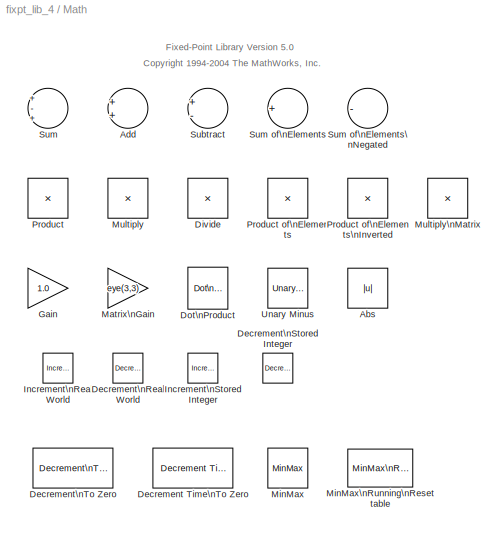
BLOCK [SubSystem] Math
  MaskDisplay = disp('Math')
  MaskIconFrame = on
  MaskIconOpaque = on
  MaskIconRotate = none
  MaskIconUnits = autoscale
  MinAlgLoopOccurrences = off
  Ports = []
  PropExecContextAcrossSSBoundary = on
  RTWSystemCode = Auto
  TreatAsAtomicUnit = off
BLOCK [Abs] Math/Abs
  SaturateOnIntegerOverflow = off
  ZeroCross = off
BLOCK [Sum] Math/Add
  InputSameDT = off
  OutDataTypeMode = Specify via dialog
  OutScaling = 2^-10
  Ports = [2, 1]
  SaturateOnIntegerOverflow = off
BLOCK [Reference] Math/Decrement Time\nTo Zero  REF=simulink/Additional Math\n& Discrete/Additional Math:\nIncrement - Decrement/Decrement Time\nTo Zero
  Ports = [1, 1]
  ShowPortLabels = on
  SourceBlock = simulink/Additional Math\n& Discrete/Additional Math:\nIncrement - Decrement/Decrement Time\nTo Zero
  SourceType = Decrement Time To Zero
BLOCK [Reference] Math/Decrement\nReal World  REF=simulink/Additional Math\n& Discrete/Additional Math:\nIncrement - Decrement/Decrement\nReal World
  Ports = [1, 1]
  ShowPortLabels = on
  SourceBlock = simulink/Additional Math\n& Discrete/Additional Math:\nIncrement - Decrement/Decrement\nReal World
  SourceType = Real World Value Decrement
BLOCK [Reference] Math/Decrement\nStored Integer  REF=simulink/Additional Math\n& Discrete/Additional Math:\nIncrement - Decrement/Decrement\nStored Integer
  Ports = [1, 1]
  ShowPortLabels = on
  SourceBlock = simulink/Additional Math\n& Discrete/Additional Math:\nIncrement - Decrement/Decrement\nStored Integer
  SourceType = Stored Integer Value Decrement
BLOCK [Reference] Math/Decrement\nTo Zero  REF=simulink/Additional Math\n& Discrete/Additional Math:\nIncrement - Decrement/Decrement\nTo Zero
  Ports = [1, 1]
  ShowPortLabels = on
  SourceBlock = simulink/Additional Math\n& Discrete/Additional Math:\nIncrement - Decrement/Decrement\nTo Zero
  SourceType = Decrement To Zero
BLOCK [Product] Math/Divide
  InputSameDT = off
  Inputs = */
  OutDataTypeMode = Specify via dialog
  OutScaling = 2^-10
  Ports = [2, 1]
  RndMeth = Floor
  SaturateOnIntegerOverflow = off
BLOCK [Reference] Math/Dot\nProduct  REF=simulink_need_slupdate/Dot\nProduct
  DoSatur = off
  InputSameDT = off
  LockScale = off
  OutDataType = sfix(16)
  OutScaling = 2^-10
  OutputDataTypeScalingMode = Specify via dialog
  Ports = [2, 1]
  RndMeth = Floor
  SourceBlock = simulink_need_slupdate/Dot\nProduct
  SourceType = Dot Product
BLOCK [Gain] Math/Gain
  Gain = 1.0
  OutDataTypeMode = Specify via dialog
  OutScaling = 2^-10
  ParameterDataTypeMode = Specify via dialog
  ParameterScaling = 2^-15
  SaturateOnIntegerOverflow = off
BLOCK [Reference] Math/Increment\nReal World  REF=simulink/Additional Math\n& Discrete/Additional Math:\nIncrement - Decrement/Increment\nReal World
  Ports = [1, 1]
  ShowPortLabels = on
  SourceBlock = simulink/Additional Math\n& Discrete/Additional Math:\nIncrement - Decrement/Increment\nReal World
  SourceType = Real World Value Increment
BLOCK [Reference] Math/Increment\nStored Integer  REF=simulink/Additional Math\n& Discrete/Additional Math:\nIncrement - Decrement/Increment\nStored Integer
  Ports = [1, 1]
  ShowPortLabels = on
  SourceBlock = simulink/Additional Math\n& Discrete/Additional Math:\nIncrement - Decrement/Increment\nStored Integer
  SourceType = Stored Integer Value Increment
BLOCK [Gain] Math/Matrix\nGain
  Gain = eye(3,3)
  Multiplication = Matrix(K*u) (u vector)
  OutDataTypeMode = Specify via dialog
  OutScaling = 2^-10
  ParameterDataType = sfix( 16 )
  ParameterDataTypeMode = Specify via dialog
  ParameterScaling = 2^-10
  SaturateOnIntegerOverflow = off
BLOCK [MinMax] Math/MinMax
  Function = min
  InputSameDT = off
  OutScaling = 2^-10
  Ports = [1, 1]
  SaturateOnIntegerOverflow = off
  ZeroCross = off
BLOCK [Reference] Math/MinMax\nRunning\nResettable  REF=simulink/Math\nOperations/MinMax\nRunning\nResettable
  Function = min
  Ports = [2, 1]
  ShowPortLabels = on
  SourceBlock = simulink/Math\nOperations/MinMax\nRunning\nResettable
  SourceType = MinMax Running Resettable
  vinit = 0.0
BLOCK [Product] Math/Multiply
  InputSameDT = off
  Inputs = **
  OutDataTypeMode = Specify via dialog
  OutScaling = 2^-10
  Ports = [2, 1]
  RndMeth = Floor
  SaturateOnIntegerOverflow = off
BLOCK [Product] Math/Multiply\nMatrix
  InputSameDT = off
  Multiplication = Matrix(*)
  OutDataTypeMode = Specify via dialog
  OutScaling = 2^-10
  Ports = [2, 1]
  RndMeth = Floor
  SaturateOnIntegerOverflow = off
BLOCK [Product] Math/Product
  InputSameDT = off
  Inputs = */*
  OutDataTypeMode = Specify via dialog
  OutScaling = 2^-10
  Ports = [3, 1]
  RndMeth = Floor
  SaturateOnIntegerOverflow = off
BLOCK [Product] Math/Product of\nElements
  InputSameDT = off
  Inputs = *
  OutDataTypeMode = Specify via dialog
  OutScaling = 2^-10
  Ports = [1, 1]
  RndMeth = Floor
  SaturateOnIntegerOverflow = off
BLOCK [Product] Math/Product of\nElements\nInverted
  InputSameDT = off
  Inputs = /
  OutDataTypeMode = Specify via dialog
  OutScaling = 2^-10
  Ports = [1, 1]
  RndMeth = Floor
  SaturateOnIntegerOverflow = off
BLOCK [Sum] Math/Subtract
  InputSameDT = off
  Inputs = +-
  OutDataTypeMode = Specify via dialog
  OutScaling = 2^-10
  Ports = [2, 1]
  SaturateOnIntegerOverflow = off
BLOCK [Sum] Math/Sum
  InputSameDT = off
  Inputs = +-+
  OutDataTypeMode = Specify via dialog
  OutScaling = 2^-10
  Ports = [3, 1]
  SaturateOnIntegerOverflow = off
BLOCK [Sum] Math/Sum of\nElements
  InputSameDT = off
  Inputs = +
  OutDataTypeMode = Specify via dialog
  OutScaling = 2^-10
  Ports = [1, 1]
  SaturateOnIntegerOverflow = off
BLOCK [Sum] Math/Sum of\nElements\nNegated
  InputSameDT = off
  Inputs = -
  OutDataTypeMode = Specify via dialog
  OutScaling = 2^-10
  Ports = [1, 1]
  SaturateOnIntegerOverflow = off
BLOCK [Reference] Math/Unary Minus  REF=simulink/Math\nOperations/Unary Minus
  DoSatur = off
  Ports = [1, 1]
  SourceBlock = simulink/Math\nOperations/Unary Minus
  SourceType = Unary Minus
BLOCK [SubSystem] Nonlinear
  MaskDisplay = disp('Nonlinear')
  MaskIconFrame = on
  MaskIconOpaque = on
  MaskIconRotate = none
  MaskIconUnits = autoscale
  MinAlgLoopOccurrences = off
  Ports = []
  PropExecContextAcrossSSBoundary = on
  RTWSystemCode = Auto
  TreatAsAtomicUnit = off
BLOCK [DeadZone] Nonlinear/Dead Zone
  LinearizeAsGain = off
  LowerValue = -1
  SaturateOnIntegerOverflow = off
  UpperValue = 1
  ZeroCross = off
BLOCK [Reference] Nonlinear/Dead Zone\nDynamic  REF=simulink/Discontinuities/Dead Zone\nDynamic
  Ports = [3, 1]
  ShowPortLabels = on
  SourceBlock = simulink/Discontinuities/Dead Zone\nDynamic
  SourceType = Dead Zone Dynamic
BLOCK [RateLimiter] Nonlinear/Rate Limiter
  FallingSlewLimit = -2
  RisingSlewLimit = 2
  SampleTimeMode = inherited
BLOCK [Reference] Nonlinear/Rate Limiter\nDynamic  REF=simulink/Discontinuities/Rate Limiter\nDynamic
  Ports = [3, 1]
  ShowPortLabels = on
  SourceBlock = simulink/Discontinuities/Rate Limiter\nDynamic
  SourceType = Rate Limiter Dynamic
BLOCK [Relay] Nonlinear/Relay
  ConRadixGroup = Best Precision: Vector-wise
  OffSwitchValue = 0
  OnSwitchValue = 0
  OutDataType = uint(8)
  OutScaling = 2^-10
  OutputDataTypeScalingMode = Specify via dialog
BLOCK [Saturate] Nonlinear/Saturation
BLOCK [Reference] Nonlinear/Saturation\nDynamic  REF=simulink/Discontinuities/Saturation\nDynamic
  Ports = [3, 1]
  ShowPortLabels = on
  SourceBlock = simulink/Discontinuities/Saturation\nDynamic
  SourceType = Saturation Dynamic
BLOCK [Signum] Nonlinear/Sign
  ZeroCross = off
BLOCK [Reference] Nonlinear/Wrap To Zero  REF=simulink/Discontinuities/Wrap To Zero
  Ports = [1, 1]
  ShowPortLabels = on
  SourceBlock = simulink/Discontinuities/Wrap To Zero
  SourceType = Wrap To Zero
  Threshold = 255
BLOCK [SubSystem] Select
  MaskDisplay = disp('Select')
  MaskIconFrame = on
  MaskIconOpaque = on
  MaskIconRotate = none
  MaskIconUnits = autoscale
  MinAlgLoopOccurrences = off
  Ports = []
  PropExecContextAcrossSSBoundary = on
  RTWSystemCode = Auto
  TreatAsAtomicUnit = off
BLOCK [MultiPortSwitch] Select/Index\nVector
  InputSameDT = off
  Inputs = 1
  Ports = [2, 1]
  SaturateOnIntegerOverflow = off
  zeroidx = on
BLOCK [MultiPortSwitch] Select/MultiPort\nSwitch
  InputSameDT = off
  Inputs = 3
  Ports = [4, 1]
  SaturateOnIntegerOverflow = off
BLOCK [Switch] Select/Switch
  InputSameDT = off
  SaturateOnIntegerOverflow = off
  Threshold = 1
  ZeroCross = off
BLOCK [SubSystem] Sources
  MaskDisplay = disp('Sources')
  MaskIconFrame = on
  MaskIconOpaque = on
  MaskIconRotate = none
  MaskIconUnits = autoscale
  MinAlgLoopOccurrences = off
  Ports = []
  PropExecContextAcrossSSBoundary = on
  RTWSystemCode = Auto
  TreatAsAtomicUnit = off
BLOCK [Constant] Sources/Constant
  ConRadixGroup = Best Precision: Vector-wise
  OutDataTypeMode = Specify via dialog
  OutScaling = 2^-10
  Value = 0.0
BLOCK [Reference] Sources/Counter\nFree  REF=simulink/Sources/Counter\nFree-Running
  NumBits = 16
  Ports = [0, 1]
  ShowPortLabels = on
  SourceBlock = simulink/Sources/Counter\nFree-Running
  SourceType = Counter Free-Running
  tsamp = -1
BLOCK [Reference] Sources/Counter\nLimited  REF=simulink/Sources/Counter\nLimited
  Ports = [0, 1]
  ShowPortLabels = on
  SourceBlock = simulink/Sources/Counter\nLimited
  SourceType = Counter Limited
  tsamp = -1
  uplimit = 7
BLOCK [Reference] Sources/Repeating\nSequence\nInterpolated  REF=simulink/Sources/Repeating\nSequence\nInterpolated
  LockScale = off
  LookUpMeth = Interpolation-Use End Values
  OutDataType = sfix(16)
  OutScaling = 2^-10
  OutValues = [3 1 4 2 1].'
  OutputDataTypeScalingMode = Specify via dialog
  Ports = [0, 1]
  ShowPortLabels = on
  SourceBlock = simulink/Sources/Repeating\nSequence\nInterpolated
  SourceType = Repeating Sequence Interpolated
  TimeValues = [0 0.1 0.5 0.6 1].'
  tsamp = 0.01
BLOCK [Reference] Sources/Repeating\nSequence\nStair  REF=simulink/Sources/Repeating\nSequence\nStair
  ConRadixGroup = Best Precision: Vector-wise
  LockScale = off
  OutDataType = sfix(16)
  OutScaling = 2^-12
  OutValues = [3 1 4 2 1].'
  OutputDataTypeScalingMode = Specify via dialog
  Ports = [0, 1]
  ShowPortLabels = on
  SourceBlock = simulink/Sources/Repeating\nSequence\nStair
  SourceType = Repeating Sequence Stair
  tsamp = -1
ANNOTATION (root): <copyright redacted>
ANNOTATION (root): Fixed-Point Library Version 5.0
ANNOTATION Bits: <copyright redacted>
ANNOTATION Bits: Fixed-Point Library Version 5.0
ANNOTATION Bits/Examples: <copyright redacted>
ANNOTATION Bits/Examples: Fixed-Point Library Version 5.0
ANNOTATION Calculus: <copyright redacted>
ANNOTATION Calculus: Fixed-Point Library Version 5.0
ANNOTATION Data Type: <copyright redacted>
ANNOTATION Data Type: Fixed-Point Library Version 5.0
ANNOTATION Delays & Holds: <copyright redacted>
ANNOTATION Delays & Holds: Fixed-Point Library Version 5.0
ANNOTATION Edge Detect: <copyright redacted>
ANNOTATION Edge Detect: Fixed-Point Library Version 5.0
ANNOTATION Filters: <copyright redacted>
ANNOTATION Filters: Fixed-Point Library Version 5.0
ANNOTATION Logic & Comparison: <copyright redacted>
ANNOTATION Logic & Comparison: Fixed-Point Library Version 5.0
ANNOTATION Logic & Comparison/Examples: <copyright redacted>
ANNOTATION Logic & Comparison/Examples: Fixed-Point Library Version 5.0
ANNOTATION LookUp: <copyright redacted>
ANNOTATION LookUp: Fixed-Point Library Version 5.0
ANNOTATION Math: <copyright redacted>
ANNOTATION Math: Fixed-Point Library Version 5.0
ANNOTATION Nonlinear: <copyright redacted>
ANNOTATION Nonlinear: Fixed-Point Library Version 5.0
ANNOTATION Select: <copyright redacted>
ANNOTATION Select: Fixed-Point Library Version 5.0
ANNOTATION Sources: <copyright redacted>
ANNOTATION Sources: Fixed-Point Library Version 5.0
LINE Filters/Filter\nDirect Form I/DenCoef:1 -> Filters/Filter\nDirect Form I/Sum:2
NET Filters/Filter\nDirect Form I/Downcast:1 -> Filters/Filter\nDirect Form I/DataTypeProp:3, Filters/Filter\nDirect Form I/Output:1, Filters/Filter\nDirect Form I/Tapped Delay of Outputs:1
NET Filters/Filter\nDirect Form I/Input:1 -> Filters/Filter\nDirect Form I/DataTypeProp:1, Filters/Filter\nDirect Form I/DataTypeProp:2, Filters/Filter\nDirect Form I/Tapped Delay of Inputs:1
LINE Filters/Filter\nDirect Form I/NumCoef:1 -> Filters/Filter\nDirect Form I/Sum:1
LINE Filters/Filter\nDirect Form I/Sum:1 -> Filters/Filter\nDirect Form I/Downcast:1
LINE Filters/Filter\nDirect Form I/Tapped Delay of Inputs:1 -> Filters/Filter\nDirect Form I/NumCoef:1
LINE Filters/Filter\nDirect Form I/Tapped Delay of Outputs:1 -> Filters/Filter\nDirect Form I/DenCoef:1
LINE Filters/Filter\nDirect Form I\nTime Varying/Den No Lead:1 -> Filters/Filter\nDirect Form I\nTime Varying/Dot1:2
LINE Filters/Filter\nDirect Form I\nTime Varying/Dot1:1 -> Filters/Filter\nDirect Form I\nTime Varying/Sum:2
LINE Filters/Filter\nDirect Form I\nTime Varying/Dot2:1 -> Filters/Filter\nDirect Form I\nTime Varying/Sum:1
NET Filters/Filter\nDirect Form I\nTime Varying/Downcast:1 -> Filters/Filter\nDirect Form I\nTime Varying/DataTypeProp:3, Filters/Filter\nDirect Form I\nTime Varying/Output:1, Filters/Filter\nDirect Form I\nTime Varying/Tapped Delay of Outputs:1
LINE Filters/Filter\nDirect Form I\nTime Varying/Num:1 -> Filters/Filter\nDirect Form I\nTime Varying/Dot2:2
LINE Filters/Filter\nDirect Form I\nTime Varying/Sum:1 -> Filters/Filter\nDirect Form I\nTime Varying/Downcast:1
LINE Filters/Filter\nDirect Form I\nTime Varying/Tapped Delay of Inputs:1 -> Filters/Filter\nDirect Form I\nTime Varying/Dot2:1
LINE Filters/Filter\nDirect Form I\nTime Varying/Tapped Delay of Outputs:1 -> Filters/Filter\nDirect Form I\nTime Varying/Dot1:1
NET Filters/Filter\nDirect Form I\nTime Varying/u:1 -> Filters/Filter\nDirect Form I\nTime Varying/DataTypeProp:1, Filters/Filter\nDirect Form I\nTime Varying/DataTypeProp:2, Filters/Filter\nDirect Form I\nTime Varying/Tapped Delay of Inputs:1
note: NET lines group one-source signal fan-out (src -> all destinations, sorted); 1:1 wires keep LINE
